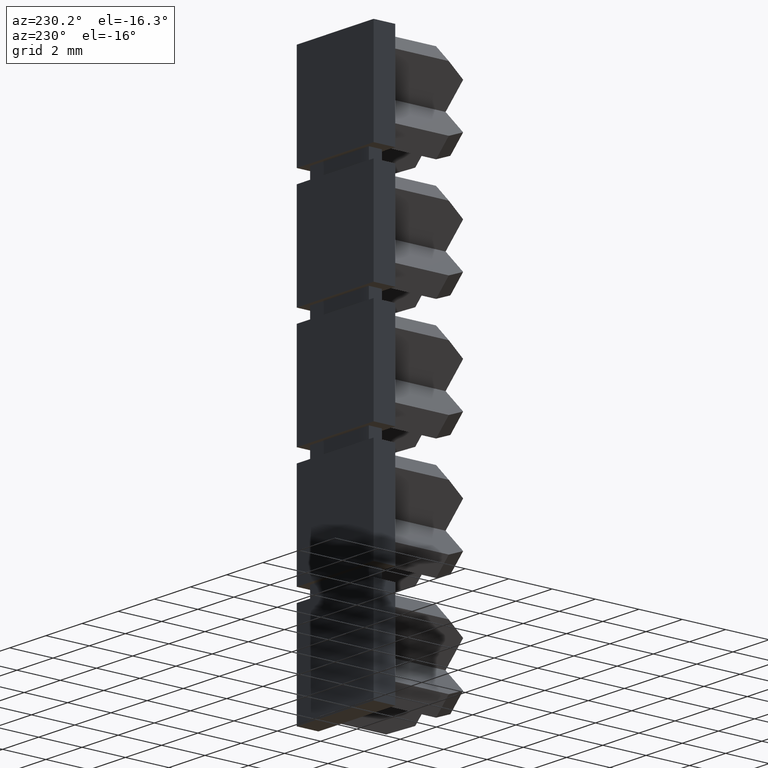
[diagram: clean part render]
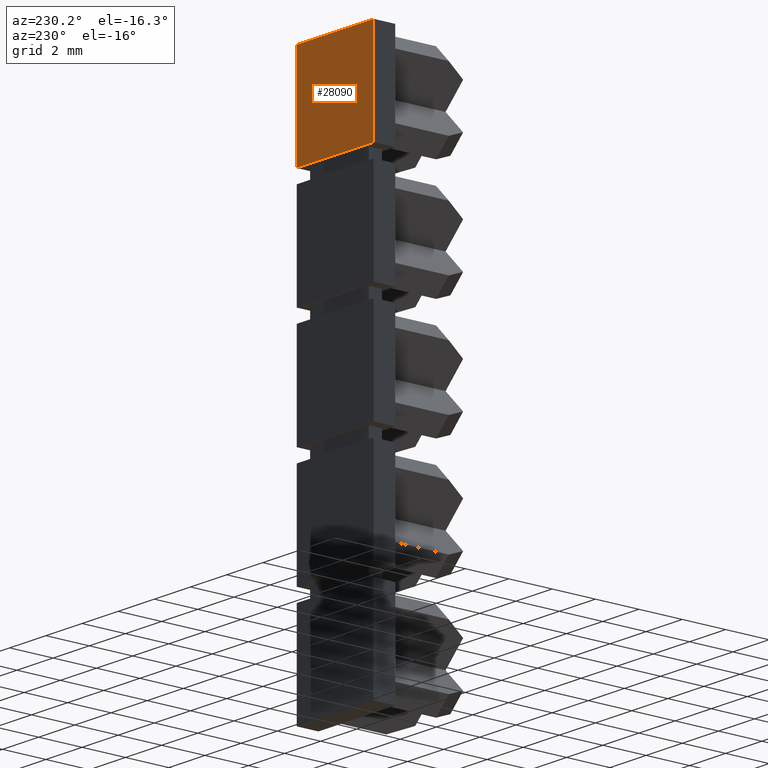
[diagram: same view with one face highlighted and labeled with its STEP entity id]
A machine part, auxiliary view. The second image highlights one B-rep face of the part: STEP entity #28090.
In plain terms, the highlighted planar face has unit normal (0, 1, 0).
Its self-contained STEP definition (entity closure, byte-faithful):
#100=CARTESIAN_POINT('',(16.5821672216754,-8.15000000000323,73.945));
#110=VERTEX_POINT('',#100);
#160=CARTESIAN_POINT('',(16.5821672216754,-8.15000000000323,74.27));
#170=DIRECTION('',(0.,0.,1.));
#180=VECTOR('',#170,1.);
#190=LINE('',#160,#180);
#200=CARTESIAN_POINT('',(16.5821672216754,-8.15000000000323,69.395));
#210=VERTEX_POINT('',#200);
#220=EDGE_CURVE('',#210,#110,#190,.T.);
#25540=CARTESIAN_POINT('',(12.3321672216754,-8.15000000000323,73.945));
#25550=VERTEX_POINT('',#25540);
#25580=CARTESIAN_POINT('',(14.1484164161272,-8.15000000000323,73.945));
#25590=DIRECTION('',(-1.,0.,0.));
#25600=VECTOR('',#25590,1.);
#25610=LINE('',#25580,#25600);
#25620=EDGE_CURVE('',#110,#25550,#25610,.T.);
#27860=CARTESIAN_POINT('',(17.0321672216754,-8.15000000000323,74.27));
#27870=DIRECTION('',(-0.,1.,0.));
#27880=DIRECTION('',(1.,0.,0.));
#27890=AXIS2_PLACEMENT_3D('',#27860,#27870,#27880);
#27900=PLANE('',#27890);
#27910=ORIENTED_EDGE('',*,*,#25620,.F.);
#27920=CARTESIAN_POINT('',(12.3321672216754,-8.15000000000323,74.27));
#27930=DIRECTION('',(0.,0.,-1.));
#27940=VECTOR('',#27930,1.);
#27950=LINE('',#27920,#27940);
#27960=CARTESIAN_POINT('',(12.3321672216754,-8.15000000000323,69.395));
#27970=VERTEX_POINT('',#27960);
#27980=EDGE_CURVE('',#25550,#27970,#27950,.T.);
#27990=ORIENTED_EDGE('',*,*,#27980,.F.);
#28000=CARTESIAN_POINT('',(14.1484164161272,-8.15000000000323,69.395));
#28010=DIRECTION('',(1.,0.,0.));
#28020=VECTOR('',#28010,1.);
#28030=LINE('',#28000,#28020);
#28040=EDGE_CURVE('',#27970,#210,#28030,.T.);
#28050=ORIENTED_EDGE('',*,*,#28040,.F.);
#28060=ORIENTED_EDGE('',*,*,#220,.F.);
#28070=EDGE_LOOP('',(#28060,#28050,#27990,#27910));
#28080=FACE_OUTER_BOUND('',#28070,.T.);
#28090=ADVANCED_FACE('',(#28080),#27900,.T.);